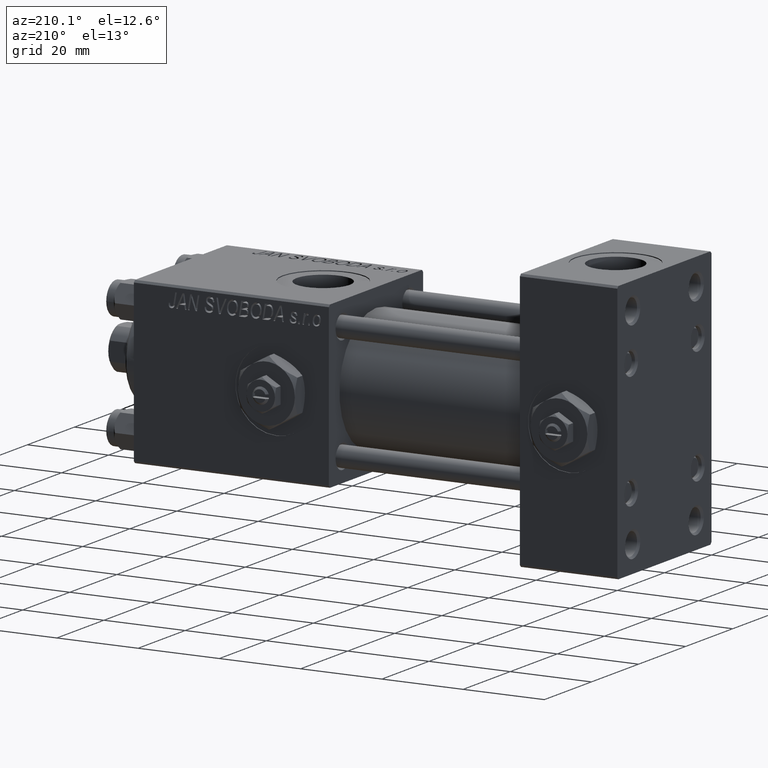
[diagram: clean part render]
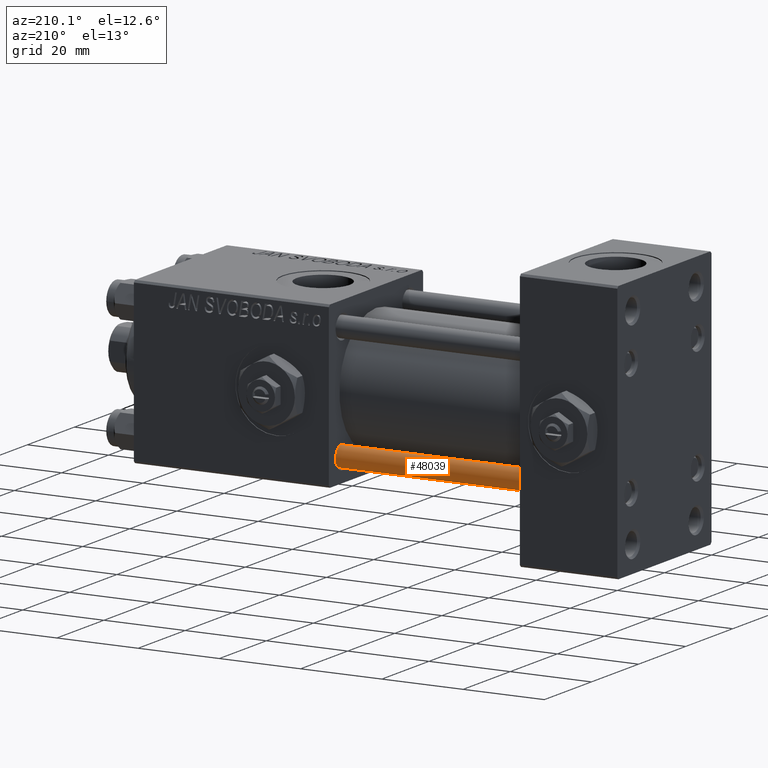
[diagram: same view with one face highlighted and labeled with its STEP entity id]
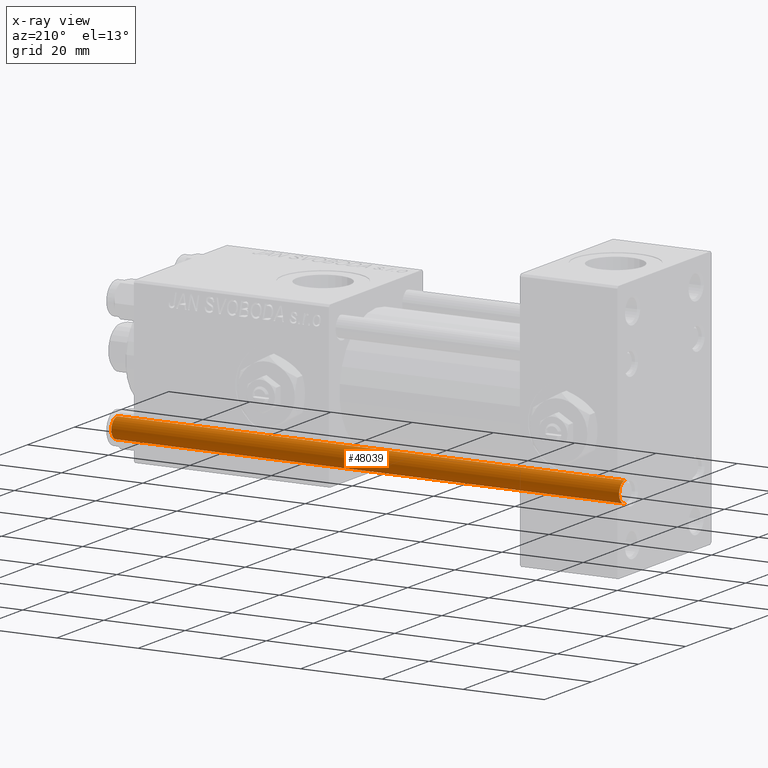
[diagram: x-ray of the same camera — body ghosted, the highlighted face saturated]
A machine part, auxiliary view. The second image highlights one B-rep face of the part: STEP entity #48039.
The next image is the same camera in x-ray: the body ghosted, the highlighted face saturated — about 0% of this face is hidden behind the body in this view.
In plain terms, the highlighted cylindrical surface (edge-blend (fillet) strip) has radius 2.5 mm, axis along (-1, 0, 0).
Its self-contained STEP definition (entity closure, byte-faithful):
#1673 = CARTESIAN_POINT ( 'NONE',  ( -2.500000000000000000, 0.000000000000000000, 0.5000000000000004441 ) ) ;
#1902 = CARTESIAN_POINT ( 'NONE',  ( 2.500000000000000000, 3.061616997868383141E-16, 125.5000000000000568 ) ) ;
#3545 = AXIS2_PLACEMENT_3D ( 'NONE', #13364, #41439, #29628 ) ;
#5884 = FACE_OUTER_BOUND ( 'NONE', #8139, .T. ) ;
#6140 = AXIS2_PLACEMENT_3D ( 'NONE', #30965, #30453, #46996 ) ;
#6150 = DIRECTION ( 'NONE',  ( -1.000000000000000000, 0.000000000000000000, 0.000000000000000000 ) ) ;
#6752 = LINE ( 'NONE', #22759, #17146 ) ;
#6937 = CYLINDRICAL_SURFACE ( 'NONE', #7914, 2.500000000000000000 ) ;
#7914 = AXIS2_PLACEMENT_3D ( 'NONE', #31065, #37893, #6150 ) ;
#8139 = EDGE_LOOP ( 'NONE', ( #25630, #32334, #28330, #36138 ) ) ;
#9949 = VERTEX_POINT ( 'NONE', #11117 ) ;
#11117 = CARTESIAN_POINT ( 'NONE',  ( 2.500000000000000000, 3.061616997868383141E-16, 0.5000000000000004441 ) ) ;
#13364 = CARTESIAN_POINT ( 'NONE',  ( 0.000000000000000000, 0.000000000000000000, 0.5000000000000004441 ) ) ;
#16205 = EDGE_CURVE ( 'NONE', #22667, #48746, #17035, .T. ) ;
#16490 = DIRECTION ( 'NONE',  ( -0.000000000000000000, -0.000000000000000000, -1.000000000000000000 ) ) ;
#17035 = CIRCLE ( 'NONE', #6140, 2.500000000000000000 ) ;
#17146 = VECTOR ( 'NONE', #38755, 1000.000000000000000 ) ;
#22096 = EDGE_CURVE ( 'NONE', #48746, #33169, #6752, .T. ) ;
#22667 = VERTEX_POINT ( 'NONE', #1902 ) ;
#22759 = CARTESIAN_POINT ( 'NONE',  ( -2.500000000000000000, 0.000000000000000000, 126.0000000000000000 ) ) ;
#25630 = ORIENTED_EDGE ( 'NONE', *, *, #51021, .F. ) ;
#28330 = ORIENTED_EDGE ( 'NONE', *, *, #22096, .T. ) ;
#28826 = LINE ( 'NONE', #44843, #29012 ) ;
#29012 = VECTOR ( 'NONE', #16490, 1000.000000000000000 ) ;
#29628 = DIRECTION ( 'NONE',  ( 1.000000000000000000, 0.000000000000000000, 0.000000000000000000 ) ) ;
#30453 = DIRECTION ( 'NONE',  ( 0.000000000000000000, 0.000000000000000000, -1.000000000000000000 ) ) ;
#30965 = CARTESIAN_POINT ( 'NONE',  ( 0.000000000000000000, 0.000000000000000000, 125.5000000000000568 ) ) ;
#31065 = CARTESIAN_POINT ( 'NONE',  ( 0.000000000000000000, 0.000000000000000000, 126.0000000000000000 ) ) ;
#32334 = ORIENTED_EDGE ( 'NONE', *, *, #16205, .T. ) ;
#33169 = VERTEX_POINT ( 'NONE', #1673 ) ;
#35372 = CIRCLE ( 'NONE', #3545, 2.500000000000000000 ) ;
#36138 = ORIENTED_EDGE ( 'NONE', *, *, #38546, .T. ) ;
#37893 = DIRECTION ( 'NONE',  ( -0.000000000000000000, -0.000000000000000000, -1.000000000000000000 ) ) ;
#38546 = EDGE_CURVE ( 'NONE', #33169, #9949, #35372, .T. ) ;
#38755 = DIRECTION ( 'NONE',  ( -0.000000000000000000, -0.000000000000000000, -1.000000000000000000 ) ) ;
#41439 = DIRECTION ( 'NONE',  ( -0.000000000000000000, -0.000000000000000000, 1.000000000000000000 ) ) ;
#43022 = CARTESIAN_POINT ( 'NONE',  ( -2.500000000000000000, 0.000000000000000000, 125.5000000000000568 ) ) ;
#44843 = CARTESIAN_POINT ( 'NONE',  ( 2.500000000000000000, 3.061616997868383141E-16, 126.0000000000000000 ) ) ;
#46996 = DIRECTION ( 'NONE',  ( 1.000000000000000000, 0.000000000000000000, 0.000000000000000000 ) ) ;
#48039 = ADVANCED_FACE ( 'NONE', ( #5884 ), #6937, .T. ) ;
#48746 = VERTEX_POINT ( 'NONE', #43022 ) ;
#51021 = EDGE_CURVE ( 'NONE', #22667, #9949, #28826, .T. ) ;